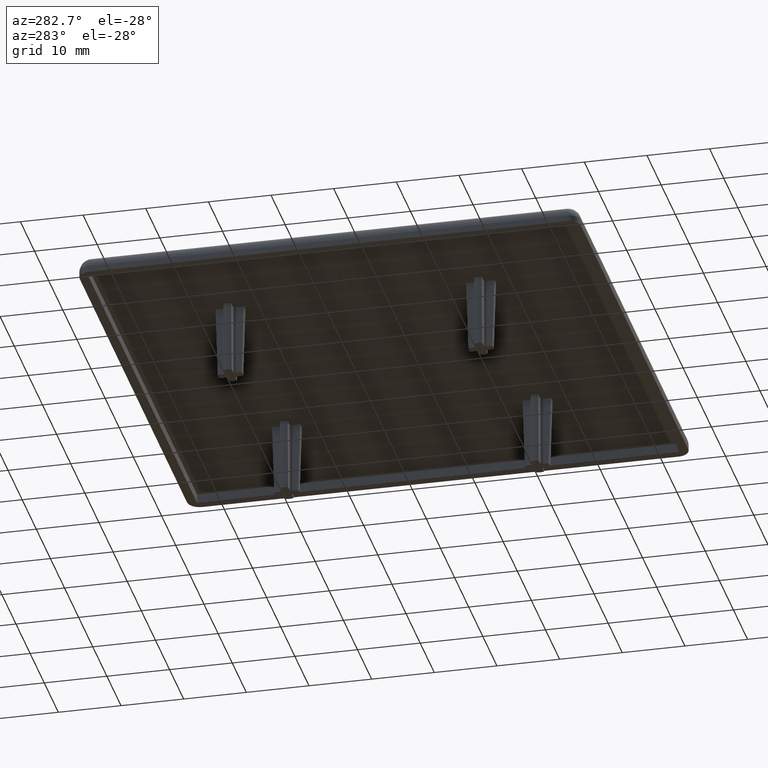
[diagram: clean part render]
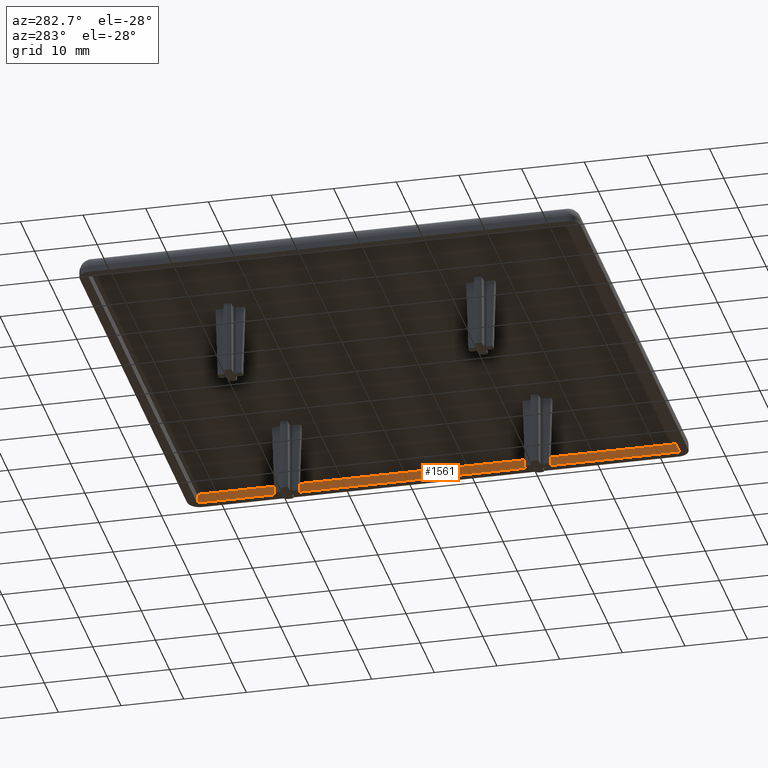
[diagram: same view with one face highlighted and labeled with its STEP entity id]
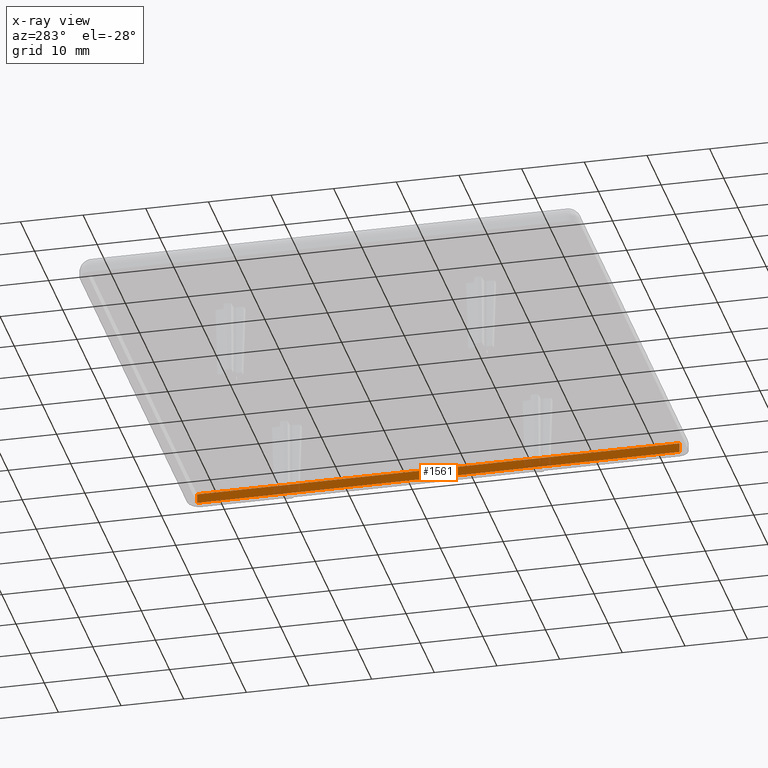
[diagram: x-ray of the same camera — body ghosted, the highlighted face saturated]
A machine part, auxiliary view. The second image highlights one B-rep face of the part: STEP entity #1561.
The next image is the same camera in x-ray: the body ghosted, the highlighted face saturated — about 11% of this face is hidden behind the body in this view.
In plain terms, the highlighted planar face has unit normal (-1, 0, 0).
Its self-contained STEP definition (entity closure, byte-faithful):
#115=FACE_OUTER_BOUND('',#207,.T.);
#207=EDGE_LOOP('',(#1095,#1096,#1097,#1098));
#288=LINE('',#2288,#416);
#307=LINE('',#2655,#435);
#310=LINE('',#2661,#438);
#311=LINE('',#2662,#439);
#416=VECTOR('',#1819,77.000000665696);
#435=VECTOR('',#1890,1.5);
#438=VECTOR('',#1895,77.000000665696);
#439=VECTOR('',#1896,1.5);
#628=VERTEX_POINT('',#2285);
#629=VERTEX_POINT('',#2287);
#643=VERTEX_POINT('',#2654);
#645=VERTEX_POINT('',#2660);
#784=EDGE_CURVE('',#628,#629,#288,.T.);
#815=EDGE_CURVE('',#643,#628,#307,.T.);
#818=EDGE_CURVE('',#643,#645,#310,.T.);
#819=EDGE_CURVE('',#645,#629,#311,.T.);
#1095=ORIENTED_EDGE('',*,*,#818,.T.);
#1096=ORIENTED_EDGE('',*,*,#819,.T.);
#1097=ORIENTED_EDGE('',*,*,#784,.F.);
#1098=ORIENTED_EDGE('',*,*,#815,.F.);
#1502=PLANE('',#1666);
#1561=ADVANCED_FACE('',(#115),#1502,.T.);
#1666=AXIS2_PLACEMENT_3D('',#2659,#1893,#1894);
#1819=DIRECTION('',(0.,1.,0.));
#1890=DIRECTION('',(0.,0.,-1.));
#1893=DIRECTION('center_axis',(-1.,0.,0.));
#1894=DIRECTION('ref_axis',(0.,-1.,0.));
#1895=DIRECTION('',(0.,1.,0.));
#1896=DIRECTION('',(0.,0.,-1.));
#2285=CARTESIAN_POINT('',(38.50000033285,1.499999666994,0.));
#2287=CARTESIAN_POINT('',(38.50000033285,78.50000033269,0.));
#2288=CARTESIAN_POINT('',(38.50000033285,1.499999666994,0.));
#2654=CARTESIAN_POINT('',(38.50000033285,1.499999666994,1.5));
#2655=CARTESIAN_POINT('',(38.50000033285,1.499999666994,1.5));
#2659=CARTESIAN_POINT('Origin',(38.50000033285,78.50000033269,0.));
#2660=CARTESIAN_POINT('',(38.50000033285,78.50000033269,1.5));
#2661=CARTESIAN_POINT('',(38.50000033285,1.499999666994,1.5));
#2662=CARTESIAN_POINT('',(38.50000033285,78.50000033269,1.5));